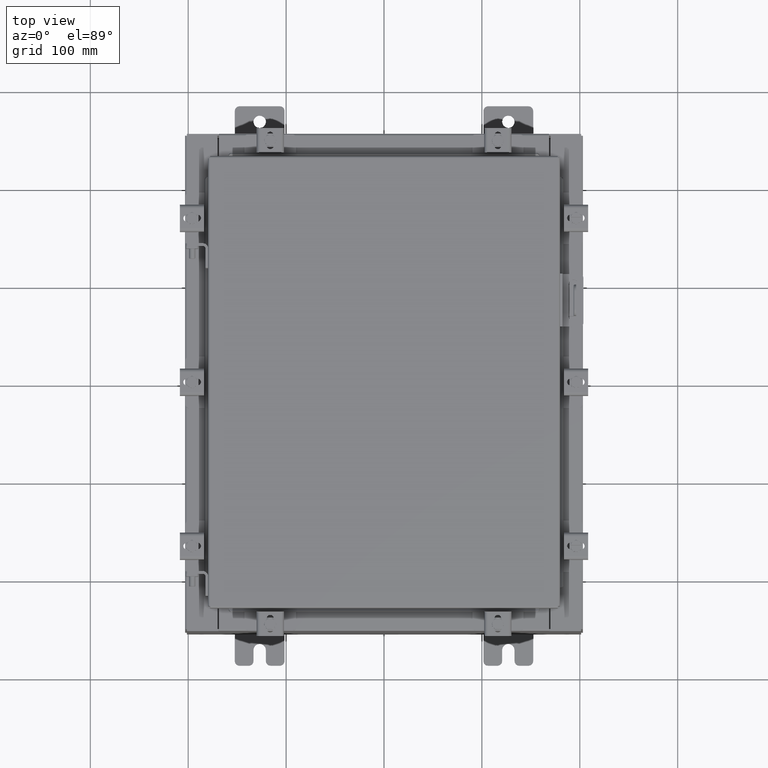
[diagram: clean part render]
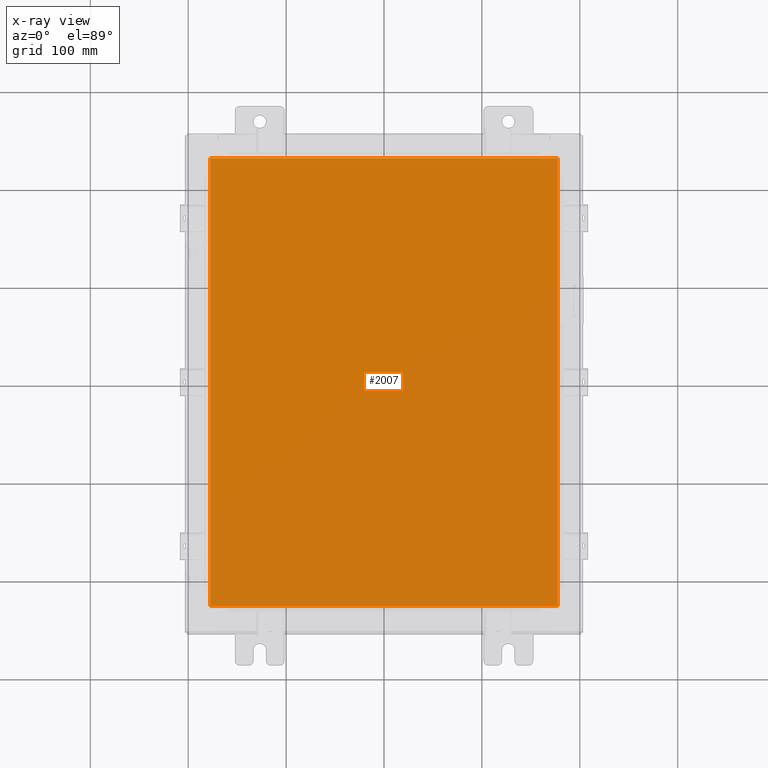
[diagram: x-ray — body ghosted, one internal face saturated and labeled with its STEP entity id]
A machine part, top view, then the same camera in x-ray: the body is ghosted and one INTERNAL B-rep face — a face not visible from any outside direction — is saturated and labeled: STEP entity #2007.
In plain terms, the highlighted planar face has unit normal (0, 0, -1).
Its self-contained STEP definition (entity closure, byte-faithful):
#194 = ORIENTED_EDGE ( 'NONE', *, *, #6062, .F. ) ;
#666 = LINE ( 'NONE', #8491, #4172 ) ;
#2007 = ADVANCED_FACE ( 'NONE', ( #20353 ), #9104, .T. ) ;
#2316 = VERTEX_POINT ( 'NONE', #8321 ) ;
#2324 = VECTOR ( 'NONE', #21113, 39.37007874015748100 ) ;
#3192 = DIRECTION ( 'NONE',  ( 1.000000000000000000, -0.0000000000000000000, -0.0000000000000000000 ) ) ;
#3913 = CARTESIAN_POINT ( 'NONE',  ( 6.990299999999996800, -9.006300000000003100, -0.07469999999999965600 ) ) ;
#4172 = VECTOR ( 'NONE', #15406, 39.37007874015748100 ) ;
#5096 = CARTESIAN_POINT ( 'NONE',  ( -6.990300000000002200, -9.006300000000003100, -0.07470000000000000300 ) ) ;
#5720 = LINE ( 'NONE', #3913, #9824 ) ;
#5878 = CARTESIAN_POINT ( 'NONE',  ( -6.990300000000003100, 9.006299999999996000, -0.07470000000000000300 ) ) ;
#6062 = EDGE_CURVE ( 'NONE', #2316, #8614, #5720, .T. ) ;
#6912 = ORIENTED_EDGE ( 'NONE', *, *, #15699, .F. ) ;
#7436 = CARTESIAN_POINT ( 'NONE',  ( 0.0000000000000000000, 0.0000000000000000000, -0.07470000000000000300 ) ) ;
#8321 = CARTESIAN_POINT ( 'NONE',  ( 6.990299999999996800, -9.006300000000003100, -0.07470000000000000300 ) ) ;
#8491 = CARTESIAN_POINT ( 'NONE',  ( -6.990300000000003100, 9.006299999999996000, -0.07470000000000019700 ) ) ;
#8614 = VERTEX_POINT ( 'NONE', #9740 ) ;
#8937 = CARTESIAN_POINT ( 'NONE',  ( 6.990299999999996800, 9.006299999999996000, -0.07469999999999965600 ) ) ;
#9104 = PLANE ( 'NONE',  #17855 ) ;
#9164 = DIRECTION ( 'NONE',  ( -1.000000000000000000, 0.0000000000000000000, -0.0000000000000000000 ) ) ;
#9740 = CARTESIAN_POINT ( 'NONE',  ( 6.990299999999996000, 9.006299999999996000, -0.07470000000000000300 ) ) ;
#9824 = VECTOR ( 'NONE', #16067, 39.37007874015748100 ) ;
#10458 = EDGE_CURVE ( 'NONE', #11816, #2316, #12410, .T. ) ;
#10530 = EDGE_LOOP ( 'NONE', ( #194, #16349, #6912, #11585 ) ) ;
#11363 = EDGE_CURVE ( 'NONE', #8614, #16049, #20276, .T. ) ;
#11585 = ORIENTED_EDGE ( 'NONE', *, *, #11363, .F. ) ;
#11816 = VERTEX_POINT ( 'NONE', #5096 ) ;
#12410 = LINE ( 'NONE', #22299, #21112 ) ;
#15406 = DIRECTION ( 'NONE',  ( 0.0000000000000000000, -1.000000000000000000, 0.0000000000000000000 ) ) ;
#15699 = EDGE_CURVE ( 'NONE', #16049, #11816, #666, .T. ) ;
#16049 = VERTEX_POINT ( 'NONE', #5878 ) ;
#16067 = DIRECTION ( 'NONE',  ( 0.0000000000000000000, 1.000000000000000000, 0.0000000000000000000 ) ) ;
#16349 = ORIENTED_EDGE ( 'NONE', *, *, #10458, .F. ) ;
#17855 = AXIS2_PLACEMENT_3D ( 'NONE', #7436, #19580, #9164 ) ;
#19580 = DIRECTION ( 'NONE',  ( 0.0000000000000000000, 0.0000000000000000000, -1.000000000000000000 ) ) ;
#20276 = LINE ( 'NONE', #8937, #2324 ) ;
#20353 = FACE_OUTER_BOUND ( 'NONE', #10530, .T. ) ;
#21112 = VECTOR ( 'NONE', #3192, 39.37007874015748100 ) ;
#21113 = DIRECTION ( 'NONE',  ( -1.000000000000000000, -0.0000000000000000000, -0.0000000000000000000 ) ) ;
#22299 = CARTESIAN_POINT ( 'NONE',  ( -6.990300000000003100, -9.006300000000003100, -0.07470000000000019700 ) ) ;